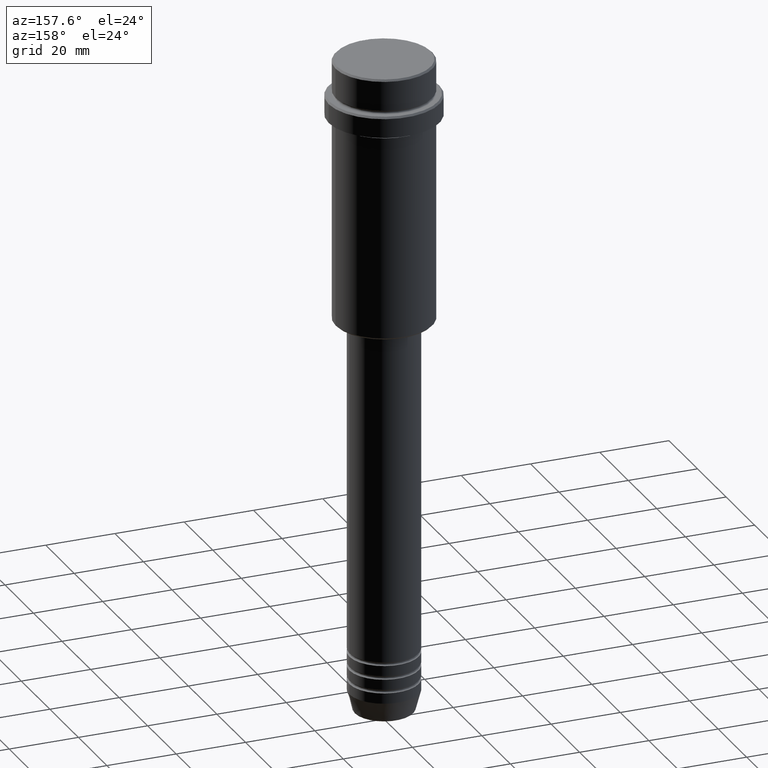
[diagram: clean part render]
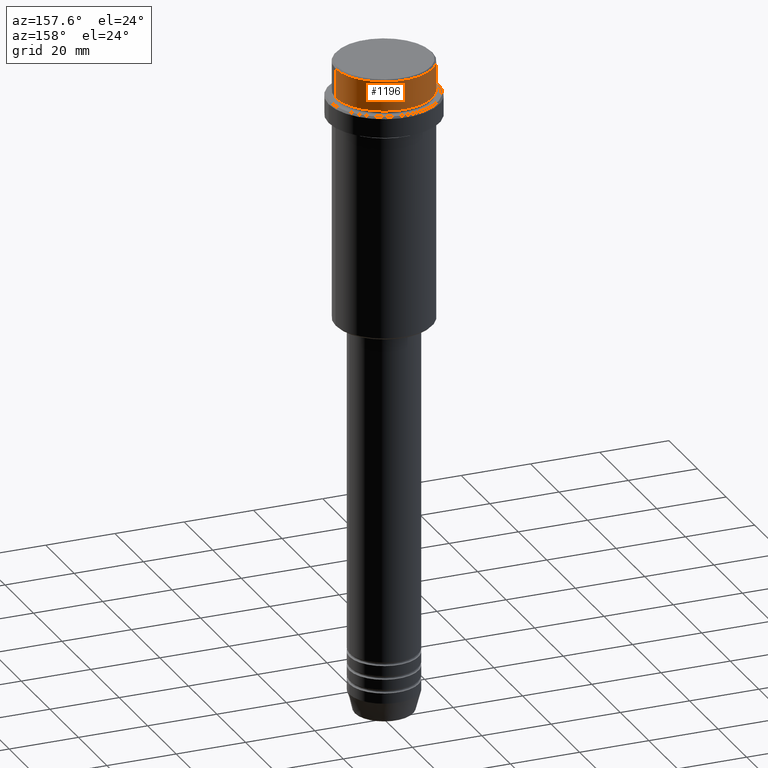
[diagram: same view with one face highlighted and labeled with its STEP entity id]
A machine part, auxiliary view. The second image highlights one B-rep face of the part: STEP entity #1196.
In plain terms, the highlighted cylindrical surface (partial cylindrical patch) has radius 14 mm, axis along (-0, -0, 1).
Its self-contained STEP definition (entity closure, byte-faithful):
#31 = VERTEX_POINT ( 'NONE', #1007 ) ;
#142 = VECTOR ( 'NONE', #1240, 1000.000000000000000 ) ;
#207 = EDGE_CURVE ( 'NONE', #1086, #415, #1315, .T. ) ;
#210 = DIRECTION ( 'NONE',  ( 0.000000000000000000, 0.000000000000000000, -1.000000000000000000 ) ) ;
#224 = ORIENTED_EDGE ( 'NONE', *, *, #1139, .T. ) ;
#233 = DIRECTION ( 'NONE',  ( 1.000000000000000000, 0.000000000000000000, 0.000000000000000000 ) ) ;
#300 = DIRECTION ( 'NONE',  ( 1.000000000000000000, 0.000000000000000000, 0.000000000000000000 ) ) ;
#362 = DIRECTION ( 'NONE',  ( -0.000000000000000000, -0.000000000000000000, 1.000000000000000000 ) ) ;
#414 = CARTESIAN_POINT ( 'NONE',  ( 0.000000000000000000, 0.000000000000000000, 0.000000000000000000 ) ) ;
#415 = VERTEX_POINT ( 'NONE', #1164 ) ;
#420 = CARTESIAN_POINT ( 'NONE',  ( 0.000000000000000000, 0.000000000000000000, -0.4999999999999970024 ) ) ;
#422 = CIRCLE ( 'NONE', #1183, 13.99999999999998757 ) ;
#438 = CARTESIAN_POINT ( 'NONE',  ( -13.99999999999998757, 1.714505518806293060E-15, 0.000000000000000000 ) ) ;
#464 = EDGE_CURVE ( 'NONE', #1086, #31, #592, .T. ) ;
#472 = CARTESIAN_POINT ( 'NONE',  ( 0.000000000000000000, 0.000000000000000000, -8.999999999999998224 ) ) ;
#521 = ORIENTED_EDGE ( 'NONE', *, *, #1333, .T. ) ;
#542 = ORIENTED_EDGE ( 'NONE', *, *, #464, .F. ) ;
#592 = LINE ( 'NONE', #931, #142 ) ;
#646 = CARTESIAN_POINT ( 'NONE',  ( 13.99999999999997513, 0.000000000000000000, -8.999999999999998224 ) ) ;
#688 = VERTEX_POINT ( 'NONE', #1103 ) ;
#754 = DIRECTION ( 'NONE',  ( -0.000000000000000000, -0.000000000000000000, 1.000000000000000000 ) ) ;
#820 = EDGE_LOOP ( 'NONE', ( #842, #521, #224, #542 ) ) ;
#842 = ORIENTED_EDGE ( 'NONE', *, *, #207, .T. ) ;
#931 = CARTESIAN_POINT ( 'NONE',  ( 13.99999999999998757, 0.000000000000000000, 0.000000000000000000 ) ) ;
#960 = FACE_OUTER_BOUND ( 'NONE', #820, .T. ) ;
#990 = LINE ( 'NONE', #438, #1320 ) ;
#1007 = CARTESIAN_POINT ( 'NONE',  ( 13.99999999999998757, 0.000000000000000000, -0.4999999999999970024 ) ) ;
#1073 = CYLINDRICAL_SURFACE ( 'NONE', #1276, 13.99999999999998757 ) ;
#1086 = VERTEX_POINT ( 'NONE', #646 ) ;
#1087 = AXIS2_PLACEMENT_3D ( 'NONE', #472, #362, #233 ) ;
#1103 = CARTESIAN_POINT ( 'NONE',  ( -13.99999999999998757, 1.714505518806293060E-15, -0.4999999999999970024 ) ) ;
#1139 = EDGE_CURVE ( 'NONE', #688, #31, #422, .T. ) ;
#1164 = CARTESIAN_POINT ( 'NONE',  ( -13.99999999999997513, 1.714505518806292271E-15, -8.999999999999998224 ) ) ;
#1183 = AXIS2_PLACEMENT_3D ( 'NONE', #420, #210, #300 ) ;
#1196 = ADVANCED_FACE ( 'NONE', ( #960 ), #1073, .T. ) ;
#1199 = DIRECTION ( 'NONE',  ( 1.000000000000000000, 0.000000000000000000, 0.000000000000000000 ) ) ;
#1223 = DIRECTION ( 'NONE',  ( -0.000000000000000000, -0.000000000000000000, 1.000000000000000000 ) ) ;
#1240 = DIRECTION ( 'NONE',  ( -0.000000000000000000, -0.000000000000000000, 1.000000000000000000 ) ) ;
#1276 = AXIS2_PLACEMENT_3D ( 'NONE', #414, #754, #1199 ) ;
#1315 = CIRCLE ( 'NONE', #1087, 13.99999999999997513 ) ;
#1320 = VECTOR ( 'NONE', #1223, 1000.000000000000000 ) ;
#1333 = EDGE_CURVE ( 'NONE', #415, #688, #990, .T. ) ;